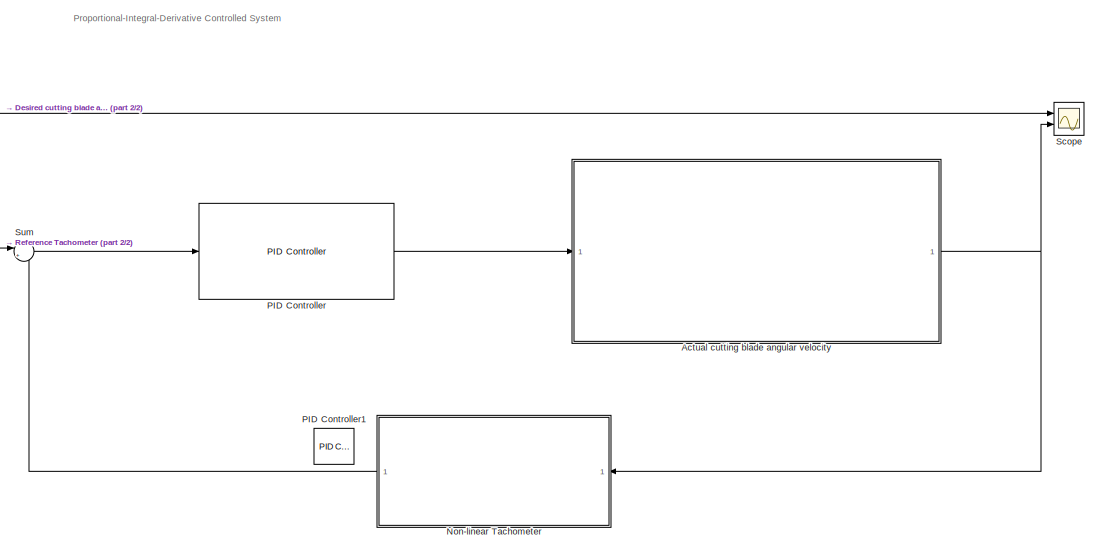
[diagram: root canvas - part 1/2, center side, full height]
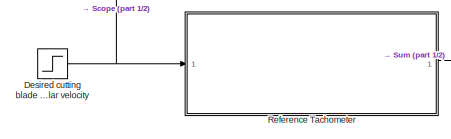
[diagram: root canvas - part 2/2, middle left region]
MODEL slx_daeb896de603
KIND model
CONFIG AbsTol = auto
CONFIG EnableMultiTasking = off
CONFIG FixedStep = auto
CONFIG MaxStep = auto
CONFIG MinStep = auto
CONFIG RelTol = 1e-3
CONFIG SampleTimeConstraint = Unconstrained
CONFIG Solver = VariableStepAuto
CONFIG SolverName = VariableStepAuto
CONFIG StartTime = 0.0
CONFIG StopTime = t_stop
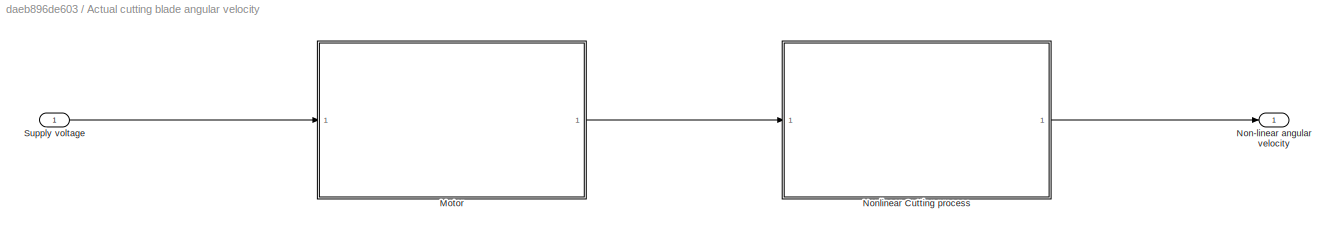
BLOCK [SubSystem] Actual cutting blade angular velocity
  Ports = [1, 1]
  RequestExecContextInheritance = off
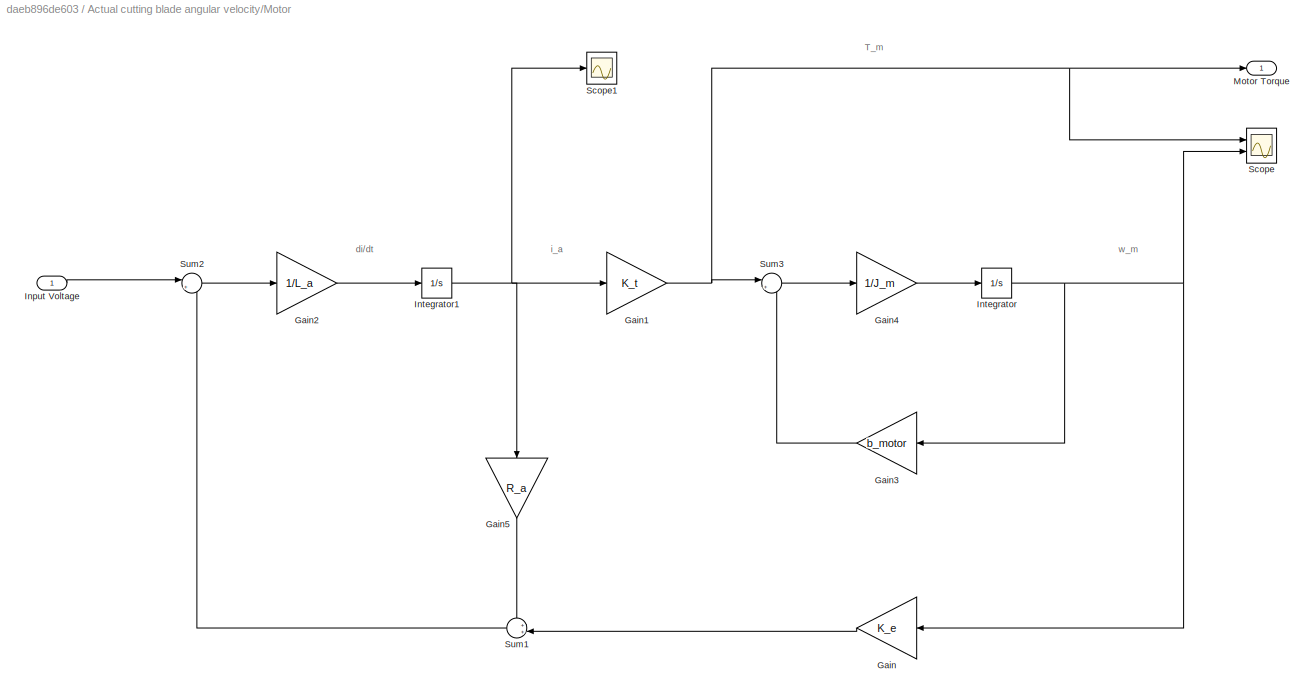
BLOCK [SubSystem] Actual cutting blade angular velocity/Motor
  Description = Motor
  Ports = [1, 1]
  RequestExecContextInheritance = off
BLOCK [Gain] Actual cutting blade angular velocity/Motor/Gain
  Gain = K_e
  OutDataTypeStr = Inherit: Inherit via internal rule
  ParamDataTypeStr = Inherit: Inherit via internal rule
  SaturateOnIntegerOverflow = off
BLOCK [Gain] Actual cutting blade angular velocity/Motor/Gain1
  Gain = K_t
  OutDataTypeStr = Inherit: Inherit via internal rule
  ParamDataTypeStr = Inherit: Inherit via internal rule
  SaturateOnIntegerOverflow = off
BLOCK [Gain] Actual cutting blade angular velocity/Motor/Gain2
  Gain = 1/L_a
  OutDataTypeStr = Inherit: Inherit via internal rule
  ParamDataTypeStr = Inherit: Inherit via internal rule
  SaturateOnIntegerOverflow = off
BLOCK [Gain] Actual cutting blade angular velocity/Motor/Gain3
  Gain = b_motor
  OutDataTypeStr = Inherit: Inherit via internal rule
  ParamDataTypeStr = Inherit: Inherit via internal rule
  SaturateOnIntegerOverflow = off
BLOCK [Gain] Actual cutting blade angular velocity/Motor/Gain4
  Gain = 1/J_m
  OutDataTypeStr = Inherit: Inherit via internal rule
  ParamDataTypeStr = Inherit: Inherit via internal rule
  SaturateOnIntegerOverflow = off
BLOCK [Gain] Actual cutting blade angular velocity/Motor/Gain5
  Gain = R_a
  OutDataTypeStr = Inherit: Inherit via internal rule
  ParamDataTypeStr = Inherit: Inherit via internal rule
  SaturateOnIntegerOverflow = off
BLOCK [Inport] Actual cutting blade angular velocity/Motor/Input Voltage
  IconDisplay = Port number
BLOCK [Integrator] Actual cutting blade angular velocity/Motor/Integrator
  Ports = [1, 1]
BLOCK [Integrator] Actual cutting blade angular velocity/Motor/Integrator1
  Ports = [1, 1]
BLOCK [Outport] Actual cutting blade angular velocity/Motor/Motor Torque
  IconDisplay = Port number
BLOCK [Scope] Actual cutting blade angular velocity/Motor/Scope
  Floating = off
  NumInputPorts = 2
  Ports = [2]
  ScopeSpecificationString = Simulink.scopes.TimeScopeBlockCfg('CurrentConfiguration', extmgr.ConfigurationSet(extmgr.Configuration('Core','General UI',true),extmgr.Configuration('Core','Source UI',true),extmgr.Configuration('Sources','WiredSimulink',true),extmgr.Configuration('Visuals','Time Domain',true,'SerializedDisplays',{struct('MinYLimReal','-433.22723','MaxYLimReal','2929.71823','YLabelReal','','MinYLimMag',' 0.00000'...<+1427ch>
BLOCK [Scope] Actual cutting blade angular velocity/Motor/Scope1
  Floating = off
  NumInputPorts = 1
  Ports = [1]
  ScopeSpecificationString = Simulink.scopes.TimeScopeBlockCfg('CurrentConfiguration', extmgr.ConfigurationSet(extmgr.Configuration('Core','General UI',true),extmgr.Configuration('Core','Source UI',true),extmgr.Configuration('Sources','WiredSimulink',true,'DataLoggingVariableName','ScopeData1'),extmgr.Configuration('Visuals','Time Domain',true,'SerializedDisplays',{struct('MinYLimReal','-82.43639','MaxYLimReal','338.04138','Y...<+1780ch>
BLOCK [Sum] Actual cutting blade angular velocity/Motor/Sum1
  IconShape = round
  InputSameDT = off
  Inputs = ++|
  OutDataTypeStr = Inherit: Inherit via internal rule
  Ports = [2, 1]
  SaturateOnIntegerOverflow = off
BLOCK [Sum] Actual cutting blade angular velocity/Motor/Sum2
  IconShape = round
  InputSameDT = off
  Inputs = |+-
  OutDataTypeStr = Inherit: Inherit via internal rule
  Ports = [2, 1]
  SaturateOnIntegerOverflow = off
BLOCK [Sum] Actual cutting blade angular velocity/Motor/Sum3
  IconShape = round
  InputSameDT = off
  Inputs = |+-
  OutDataTypeStr = Inherit: Inherit via internal rule
  Ports = [2, 1]
  SaturateOnIntegerOverflow = off
BLOCK [Outport] Actual cutting blade angular velocity/Non-linear angular velocity 
  IconDisplay = Port number
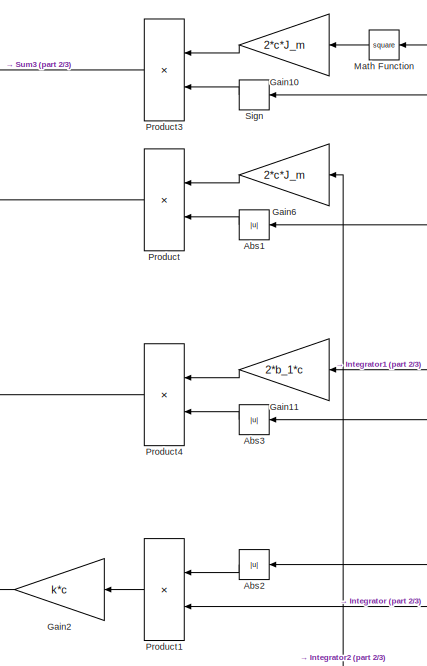
[diagram: Actual cutting blade angular velocity/Nonlinear Cutting process - part 1/3, top center region]
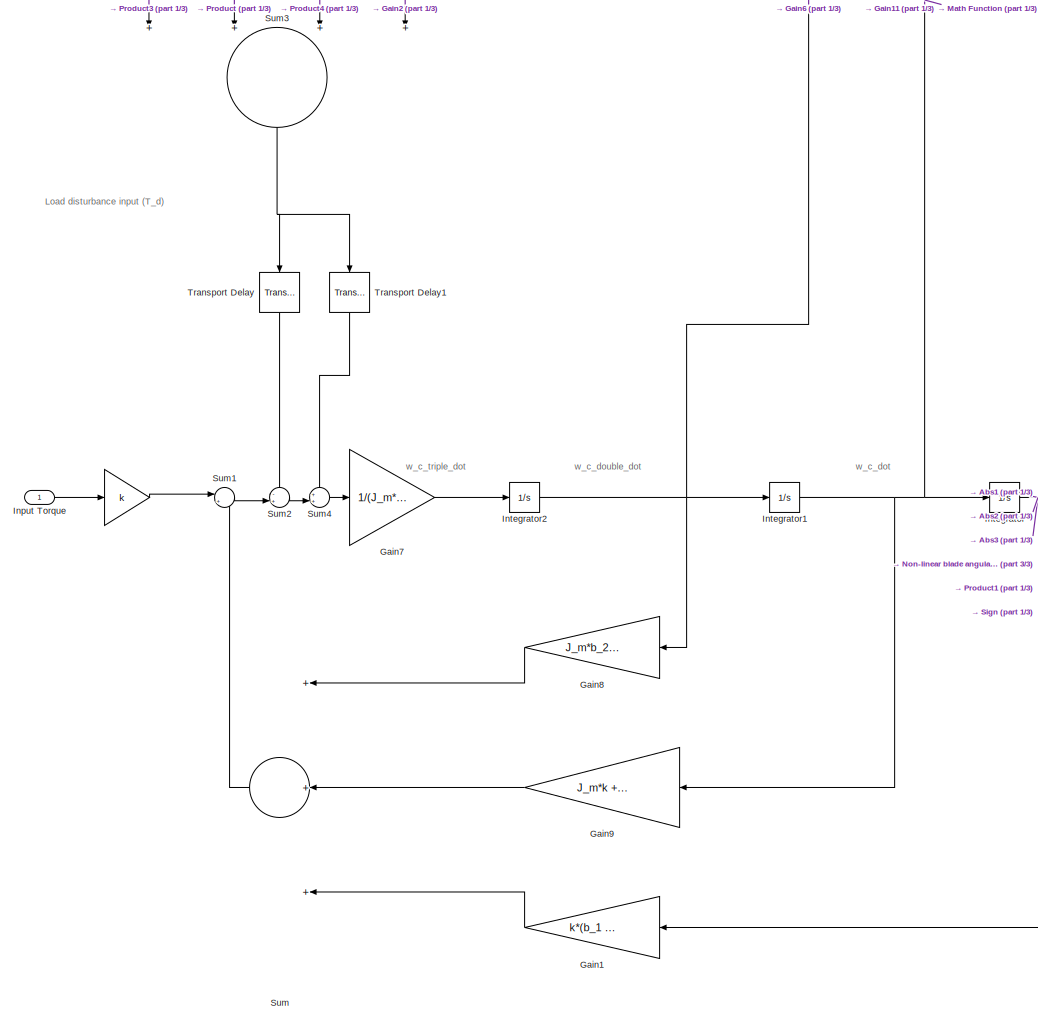
[diagram: Actual cutting blade angular velocity/Nonlinear Cutting process - part 2/3, bottom center region]
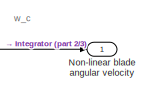
[diagram: Actual cutting blade angular velocity/Nonlinear Cutting process - part 3/3, bottom right region]
BLOCK [SubSystem] Actual cutting blade angular velocity/Nonlinear Cutting process
  Ports = [1, 1]
  RequestExecContextInheritance = off
BLOCK [Gain] Actual cutting blade angular velocity/Nonlinear Cutting process/ 
  Gain = k
  OutDataTypeStr = Inherit: Inherit via internal rule
  ParamDataTypeStr = Inherit: Inherit via internal rule
  SaturateOnIntegerOverflow = off
BLOCK [Abs] Actual cutting blade angular velocity/Nonlinear Cutting process/Abs1
  SaturateOnIntegerOverflow = off
BLOCK [Abs] Actual cutting blade angular velocity/Nonlinear Cutting process/Abs2
  SaturateOnIntegerOverflow = off
BLOCK [Abs] Actual cutting blade angular velocity/Nonlinear Cutting process/Abs3
  SaturateOnIntegerOverflow = off
BLOCK [Gain] Actual cutting blade angular velocity/Nonlinear Cutting process/Gain1
  Gain = k*(b_1 + b_2)
  OutDataTypeStr = Inherit: Inherit via internal rule
  ParamDataTypeStr = Inherit: Inherit via internal rule
  SaturateOnIntegerOverflow = off
BLOCK [Gain] Actual cutting blade angular velocity/Nonlinear Cutting process/Gain10
  Gain = 2*c*J_m
  OutDataTypeStr = Inherit: Inherit via internal rule
  ParamDataTypeStr = Inherit: Inherit via internal rule
  SaturateOnIntegerOverflow = off
BLOCK [Gain] Actual cutting blade angular velocity/Nonlinear Cutting process/Gain11
  Gain = 2*b_1*c
  OutDataTypeStr = Inherit: Inherit via internal rule
  ParamDataTypeStr = Inherit: Inherit via internal rule
  SaturateOnIntegerOverflow = off
BLOCK [Gain] Actual cutting blade angular velocity/Nonlinear Cutting process/Gain2
  Gain = k*c
  OutDataTypeStr = Inherit: Inherit via internal rule
  ParamDataTypeStr = Inherit: Inherit via internal rule
  SaturateOnIntegerOverflow = off
BLOCK [Gain] Actual cutting blade angular velocity/Nonlinear Cutting process/Gain6
  Gain = 2*c*J_m
  OutDataTypeStr = Inherit: Inherit via internal rule
  ParamDataTypeStr = Inherit: Inherit via internal rule
  SaturateOnIntegerOverflow = off
BLOCK [Gain] Actual cutting blade angular velocity/Nonlinear Cutting process/Gain7
  Gain = 1/(J_m*J_c)
  OutDataTypeStr = Inherit: Inherit via internal rule
  ParamDataTypeStr = Inherit: Inherit via internal rule
  SaturateOnIntegerOverflow = off
BLOCK [Gain] Actual cutting blade angular velocity/Nonlinear Cutting process/Gain8
  Gain = J_m*b_2 + J_c*b_1
  OutDataTypeStr = Inherit: Inherit via internal rule
  ParamDataTypeStr = Inherit: Inherit via internal rule
  SaturateOnIntegerOverflow = off
BLOCK [Gain] Actual cutting blade angular velocity/Nonlinear Cutting process/Gain9
  Gain = J_m*k + b_1*b_2 + J_c*k
  OutDataTypeStr = Inherit: Inherit via internal rule
  ParamDataTypeStr = Inherit: Inherit via internal rule
  SaturateOnIntegerOverflow = off
BLOCK [Inport] Actual cutting blade angular velocity/Nonlinear Cutting process/Input Torque
  IconDisplay = Port number
BLOCK [Integrator] Actual cutting blade angular velocity/Nonlinear Cutting process/Integrator
  Ports = [1, 1]
BLOCK [Integrator] Actual cutting blade angular velocity/Nonlinear Cutting process/Integrator1
  Ports = [1, 1]
BLOCK [Integrator] Actual cutting blade angular velocity/Nonlinear Cutting process/Integrator2
  Ports = [1, 1]
BLOCK [Math] Actual cutting blade angular velocity/Nonlinear Cutting process/Math Function
  Operator = square
  Ports = [1, 1]
BLOCK [Outport] Actual cutting blade angular velocity/Nonlinear Cutting process/Non-linear blade angular velocity
  IconDisplay = Port number
BLOCK [Product] Actual cutting blade angular velocity/Nonlinear Cutting process/Product
  InputSameDT = off
  OutDataTypeStr = Inherit: Inherit via internal rule
  Ports = [2, 1]
  RndMeth = Floor
  SaturateOnIntegerOverflow = off
BLOCK [Product] Actual cutting blade angular velocity/Nonlinear Cutting process/Product1
  InputSameDT = off
  OutDataTypeStr = Inherit: Inherit via internal rule
  Ports = [2, 1]
  RndMeth = Floor
  SaturateOnIntegerOverflow = off
BLOCK [Product] Actual cutting blade angular velocity/Nonlinear Cutting process/Product3
  InputSameDT = off
  OutDataTypeStr = Inherit: Inherit via internal rule
  Ports = [2, 1]
  RndMeth = Floor
  SaturateOnIntegerOverflow = off
BLOCK [Product] Actual cutting blade angular velocity/Nonlinear Cutting process/Product4
  InputSameDT = off
  OutDataTypeStr = Inherit: Inherit via internal rule
  Ports = [2, 1]
  RndMeth = Floor
  SaturateOnIntegerOverflow = off
BLOCK [Signum] Actual cutting blade angular velocity/Nonlinear Cutting process/Sign
BLOCK [Sum] Actual cutting blade angular velocity/Nonlinear Cutting process/Sum
  InputSameDT = off
  Inputs = +++
  OutDataTypeStr = Inherit: Inherit via internal rule
  Ports = [3, 1]
  SaturateOnIntegerOverflow = off
BLOCK [Sum] Actual cutting blade angular velocity/Nonlinear Cutting process/Sum1
  IconShape = round
  InputSameDT = off
  Inputs = |+-
  OutDataTypeStr = Inherit: Inherit via internal rule
  Ports = [2, 1]
  SaturateOnIntegerOverflow = off
BLOCK [Sum] Actual cutting blade angular velocity/Nonlinear Cutting process/Sum2
  IconShape = round
  InputSameDT = off
  Inputs = -+|
  OutDataTypeStr = Inherit: Inherit via internal rule
  Ports = [2, 1]
  SaturateOnIntegerOverflow = off
BLOCK [Sum] Actual cutting blade angular velocity/Nonlinear Cutting process/Sum3
  InputSameDT = off
  Inputs = ++++
  OutDataTypeStr = Inherit: Inherit via internal rule
  Ports = [4, 1]
  SaturateOnIntegerOverflow = off
BLOCK [Sum] Actual cutting blade angular velocity/Nonlinear Cutting process/Sum4
  IconShape = round
  InputSameDT = off
  Inputs = ++|
  OutDataTypeStr = Inherit: Inherit via internal rule
  Ports = [2, 1]
  SaturateOnIntegerOverflow = off
BLOCK [TransportDelay] Actual cutting blade angular velocity/Nonlinear Cutting process/Transport Delay
  BufferSize = 117760
  DelayTime = t_cut_start
  Ports = [1, 1]
BLOCK [TransportDelay] Actual cutting blade angular velocity/Nonlinear Cutting process/Transport Delay1
  BufferSize = 76800
  DelayTime = t_cut_stop
  Ports = [1, 1]
BLOCK [Inport] Actual cutting blade angular velocity/Supply voltage
  IconDisplay = Port number
BLOCK [Step] Desired cutting blade angular velocity
  After = w_c
  SampleTime = 0
  Time = t_step
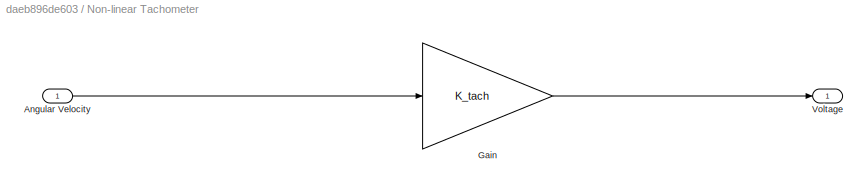
BLOCK [SubSystem] Non-linear Tachometer
  Ports = [1, 1]
  RequestExecContextInheritance = off
BLOCK [Inport] Non-linear Tachometer/Angular Velocity
  IconDisplay = Port number
BLOCK [Gain] Non-linear Tachometer/Gain
  Gain = K_tach
  OutDataTypeStr = Inherit: Inherit via internal rule
  ParamDataTypeStr = Inherit: Inherit via internal rule
  SaturateOnIntegerOverflow = off
BLOCK [Outport] Non-linear Tachometer/Voltage
  IconDisplay = Port number
BLOCK [Reference] PID Controller  REF=simulink/Continuous/PID Controller
  Ports = [1, 1]
  SourceBlock = simulink/Continuous/PID Controller
  SourceProductBaseCode = SL
  SourceProductName = Simulink
  SourceType = PID 1dof
BLOCK [Reference] PID Controller1  REF=simulink/Continuous/PID Controller
  Ports = [1, 1]
  SourceBlock = simulink/Continuous/PID Controller
  SourceProductBaseCode = SL
  SourceProductName = Simulink
  SourceType = PID 1dof
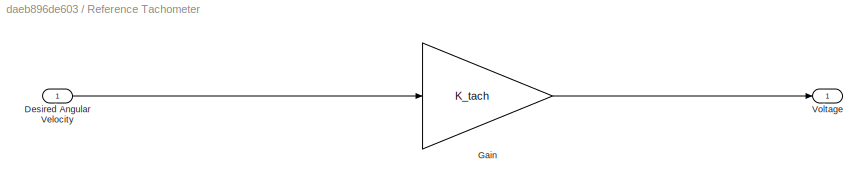
BLOCK [SubSystem] Reference Tachometer
  Ports = [1, 1]
  RequestExecContextInheritance = off
BLOCK [Inport] Reference Tachometer/Desired Angular Velocity
  IconDisplay = Port number
BLOCK [Gain] Reference Tachometer/Gain
  Gain = K_tach
  OutDataTypeStr = Inherit: Inherit via internal rule
  ParamDataTypeStr = Inherit: Inherit via internal rule
  SaturateOnIntegerOverflow = off
BLOCK [Outport] Reference Tachometer/Voltage
  IconDisplay = Port number
BLOCK [Scope] Scope
  Floating = off
  NumInputPorts = 2
  Ports = [2]
  ScopeSpecificationString = Simulink.scopes.TimeScopeBlockCfg('CurrentConfiguration', extmgr.ConfigurationSet(extmgr.Configuration('Core','General UI',true,'DisplayFullSourceName',true),extmgr.Configuration('Core','Source UI',true),extmgr.Configuration('Sources','WiredSimulink',true,'DataLoggingVariableName','ScopeData2'),extmgr.Configuration('Visuals','Time Domain',true,'SerializedDisplays',{struct('MinYLimReal','-88.18289'...<+1567ch>
BLOCK [Sum] Sum
  IconShape = round
  InputSameDT = off
  Inputs = |+-
  OutDataTypeStr = Inherit: Inherit via internal rule
  Ports = [2, 1]
  SaturateOnIntegerOverflow = off
ANNOTATION (root): Proportional-Integral-Derivative Controlled System
ANNOTATION Actual cutting blade angular velocity/Motor: T_m
ANNOTATION Actual cutting blade angular velocity/Motor: di/dt
ANNOTATION Actual cutting blade angular velocity/Motor: i_a
ANNOTATION Actual cutting blade angular velocity/Motor: w_m
ANNOTATION Actual cutting blade angular velocity/Nonlinear Cutting process: Load disturbance input (T_d)
ANNOTATION Actual cutting blade angular velocity/Nonlinear Cutting process: w_c
ANNOTATION Actual cutting blade angular velocity/Nonlinear Cutting process: w_c_dot
ANNOTATION Actual cutting blade angular velocity/Nonlinear Cutting process: w_c_double_dot
ANNOTATION Actual cutting blade angular velocity/Nonlinear Cutting process: w_c_triple_dot
NET Actual cutting blade angular velocity/Motor/Gain1:1 -> Actual cutting blade angular velocity/Motor/Motor Torque:1, Actual cutting blade angular velocity/Motor/Scope:1, Actual cutting blade angular velocity/Motor/Sum3:1
LINE Actual cutting blade angular velocity/Motor/Gain2:1 -> Actual cutting blade angular velocity/Motor/Integrator1:1
LINE Actual cutting blade angular velocity/Motor/Gain3:1 -> Actual cutting blade angular velocity/Motor/Sum3:2
LINE Actual cutting blade angular velocity/Motor/Gain4:1 -> Actual cutting blade angular velocity/Motor/Integrator:1
LINE Actual cutting blade angular velocity/Motor/Gain5:1 -> Actual cutting blade angular velocity/Motor/Sum1:1
LINE Actual cutting blade angular velocity/Motor/Gain:1 -> Actual cutting blade angular velocity/Motor/Sum1:2
LINE Actual cutting blade angular velocity/Motor/Input Voltage:1 -> Actual cutting blade angular velocity/Motor/Sum2:1
NET Actual cutting blade angular velocity/Motor/Integrator1:1 -> Actual cutting blade angular velocity/Motor/Gain1:1, Actual cutting blade angular velocity/Motor/Gain5:1, Actual cutting blade angular velocity/Motor/Scope1:1
NET Actual cutting blade angular velocity/Motor/Integrator:1 -> Actual cutting blade angular velocity/Motor/Gain3:1, Actual cutting blade angular velocity/Motor/Gain:1, Actual cutting blade angular velocity/Motor/Scope:2
LINE Actual cutting blade angular velocity/Motor/Sum1:1 -> Actual cutting blade angular velocity/Motor/Sum2:2
LINE Actual cutting blade angular velocity/Motor/Sum2:1 -> Actual cutting blade angular velocity/Motor/Gain2:1
LINE Actual cutting blade angular velocity/Motor/Sum3:1 -> Actual cutting blade angular velocity/Motor/Gain4:1
LINE Actual cutting blade angular velocity/Motor:1 -> Actual cutting blade angular velocity/Nonlinear Cutting process:1
LINE Actual cutting blade angular velocity/Nonlinear Cutting process/ :1 -> Actual cutting blade angular velocity/Nonlinear Cutting process/Sum1:1
LINE Actual cutting blade angular velocity/Nonlinear Cutting process/Abs1:1 -> Actual cutting blade angular velocity/Nonlinear Cutting process/Product:2
LINE Actual cutting blade angular velocity/Nonlinear Cutting process/Abs2:1 -> Actual cutting blade angular velocity/Nonlinear Cutting process/Product1:1
LINE Actual cutting blade angular velocity/Nonlinear Cutting process/Abs3:1 -> Actual cutting blade angular velocity/Nonlinear Cutting process/Product4:2
LINE Actual cutting blade angular velocity/Nonlinear Cutting process/Gain10:1 -> Actual cutting blade angular velocity/Nonlinear Cutting process/Product3:1
LINE Actual cutting blade angular velocity/Nonlinear Cutting process/Gain11:1 -> Actual cutting blade angular velocity/Nonlinear Cutting process/Product4:1
LINE Actual cutting blade angular velocity/Nonlinear Cutting process/Gain1:1 -> Actual cutting blade angular velocity/Nonlinear Cutting process/Sum:3
LINE Actual cutting blade angular velocity/Nonlinear Cutting process/Gain2:1 -> Actual cutting blade angular velocity/Nonlinear Cutting process/Sum3:4
LINE Actual cutting blade angular velocity/Nonlinear Cutting process/Gain6:1 -> Actual cutting blade angular velocity/Nonlinear Cutting process/Product:1
LINE Actual cutting blade angular velocity/Nonlinear Cutting process/Gain7:1 -> Actual cutting blade angular velocity/Nonlinear Cutting process/Integrator2:1
LINE Actual cutting blade angular velocity/Nonlinear Cutting process/Gain8:1 -> Actual cutting blade angular velocity/Nonlinear Cutting process/Sum:1
LINE Actual cutting blade angular velocity/Nonlinear Cutting process/Gain9:1 -> Actual cutting blade angular velocity/Nonlinear Cutting process/Sum:2
LINE Actual cutting blade angular velocity/Nonlinear Cutting process/Input Torque:1 -> Actual cutting blade angular velocity/Nonlinear Cutting process/ :1
NET Actual cutting blade angular velocity/Nonlinear Cutting process/Integrator1:1 -> Actual cutting blade angular velocity/Nonlinear Cutting process/Gain11:1, Actual cutting blade angular velocity/Nonlinear Cutting process/Gain9:1, Actual cutting blade angular velocity/Nonlinear Cutting process/Integrator:1, Actual cutting blade angular velocity/Nonlinear Cutting process/Math Function:1
NET Actual cutting blade angular velocity/Nonlinear Cutting process/Integrator2:1 -> Actual cutting blade angular velocity/Nonlinear Cutting process/Gain6:1, Actual cutting blade angular velocity/Nonlinear Cutting process/Gain8:1, Actual cutting blade angular velocity/Nonlinear Cutting process/Integrator1:1
NET Actual cutting blade angular velocity/Nonlinear Cutting process/Integrator:1 -> Actual cutting blade angular velocity/Nonlinear Cutting process/Abs1:1, Actual cutting blade angular velocity/Nonlinear Cutting process/Abs2:1, Actual cutting blade angular velocity/Nonlinear Cutting process/Abs3:1, Actual cutting blade angular velocity/Nonlinear Cutting process/Gain1:1, Actual cutting blade angular velocity/Nonlinear Cutting process/Non-linear blade angular velocity:1, Actual cutting blade angular velocity/Nonlinear Cutting process/Product1:2, Actual cutting blade angular velocity/Nonlinear Cutting process/Sign:1
LINE Actual cutting blade angular velocity/Nonlinear Cutting process/Math Function:1 -> Actual cutting blade angular velocity/Nonlinear Cutting process/Gain10:1
LINE Actual cutting blade angular velocity/Nonlinear Cutting process/Product1:1 -> Actual cutting blade angular velocity/Nonlinear Cutting process/Gain2:1
LINE Actual cutting blade angular velocity/Nonlinear Cutting process/Product3:1 -> Actual cutting blade angular velocity/Nonlinear Cutting process/Sum3:1
LINE Actual cutting blade angular velocity/Nonlinear Cutting process/Product4:1 -> Actual cutting blade angular velocity/Nonlinear Cutting process/Sum3:3
LINE Actual cutting blade angular velocity/Nonlinear Cutting process/Product:1 -> Actual cutting blade angular velocity/Nonlinear Cutting process/Sum3:2
LINE Actual cutting blade angular velocity/Nonlinear Cutting process/Sign:1 -> Actual cutting blade angular velocity/Nonlinear Cutting process/Product3:2
LINE Actual cutting blade angular velocity/Nonlinear Cutting process/Sum1:1 -> Actual cutting blade angular velocity/Nonlinear Cutting process/Sum2:2
LINE Actual cutting blade angular velocity/Nonlinear Cutting process/Sum2:1 -> Actual cutting blade angular velocity/Nonlinear Cutting process/Sum4:2
NET Actual cutting blade angular velocity/Nonlinear Cutting process/Sum3:1 -> Actual cutting blade angular velocity/Nonlinear Cutting process/Transport Delay1:1, Actual cutting blade angular velocity/Nonlinear Cutting process/Transport Delay:1
LINE Actual cutting blade angular velocity/Nonlinear Cutting process/Sum4:1 -> Actual cutting blade angular velocity/Nonlinear Cutting process/Gain7:1
LINE Actual cutting blade angular velocity/Nonlinear Cutting process/Sum:1 -> Actual cutting blade angular velocity/Nonlinear Cutting process/Sum1:2
LINE Actual cutting blade angular velocity/Nonlinear Cutting process/Transport Delay1:1 -> Actual cutting blade angular velocity/Nonlinear Cutting process/Sum4:1
LINE Actual cutting blade angular velocity/Nonlinear Cutting process/Transport Delay:1 -> Actual cutting blade angular velocity/Nonlinear Cutting process/Sum2:1
LINE Actual cutting blade angular velocity/Nonlinear Cutting process:1 -> Actual cutting blade angular velocity/Non-linear angular velocity :1
LINE Actual cutting blade angular velocity/Supply voltage:1 -> Actual cutting blade angular velocity/Motor:1
NET Actual cutting blade angular velocity:1 -> Non-linear Tachometer:1, Scope:2
NET Desired cutting blade angular velocity:1 -> Reference Tachometer:1, Scope:1
LINE Non-linear Tachometer/Angular Velocity:1 -> Non-linear Tachometer/Gain:1
LINE Non-linear Tachometer/Gain:1 -> Non-linear Tachometer/Voltage:1
LINE Non-linear Tachometer:1 -> Sum:2
LINE PID Controller:1 -> Actual cutting blade angular velocity:1
LINE Reference Tachometer/Desired Angular Velocity:1 -> Reference Tachometer/Gain:1
LINE Reference Tachometer/Gain:1 -> Reference Tachometer/Voltage:1
LINE Reference Tachometer:1 -> Sum:1
LINE Sum:1 -> PID Controller:1
note: NET lines group one-source signal fan-out (src -> all destinations, sorted); 1:1 wires keep LINE
